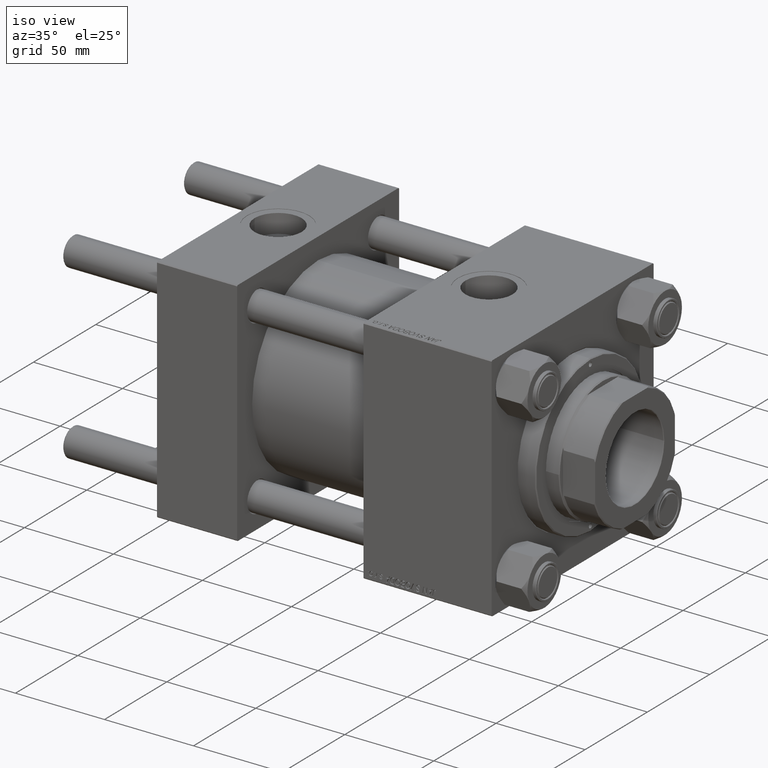
[diagram: clean part render]
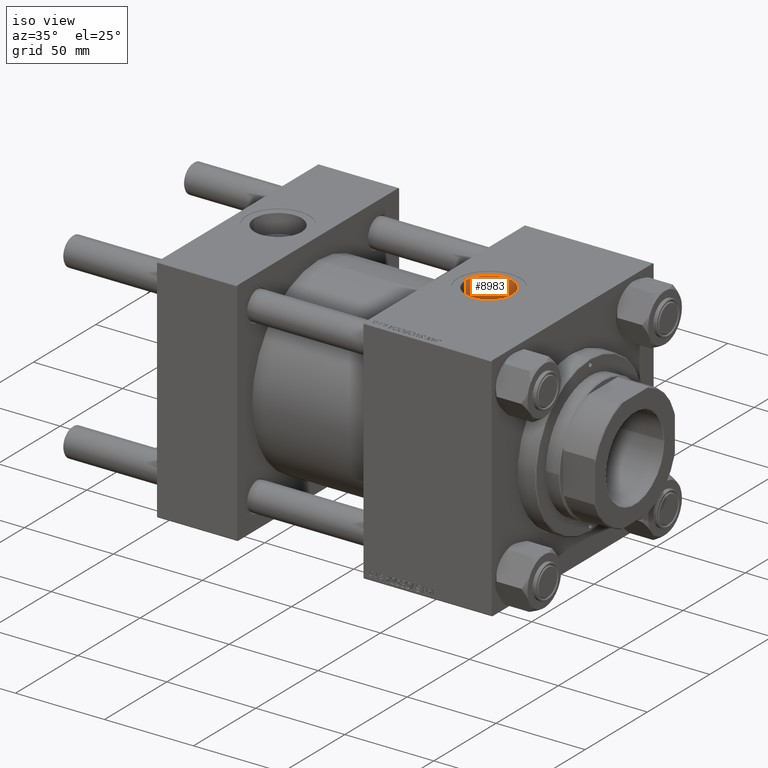
[diagram: same view with one face highlighted and labeled with its STEP entity id]
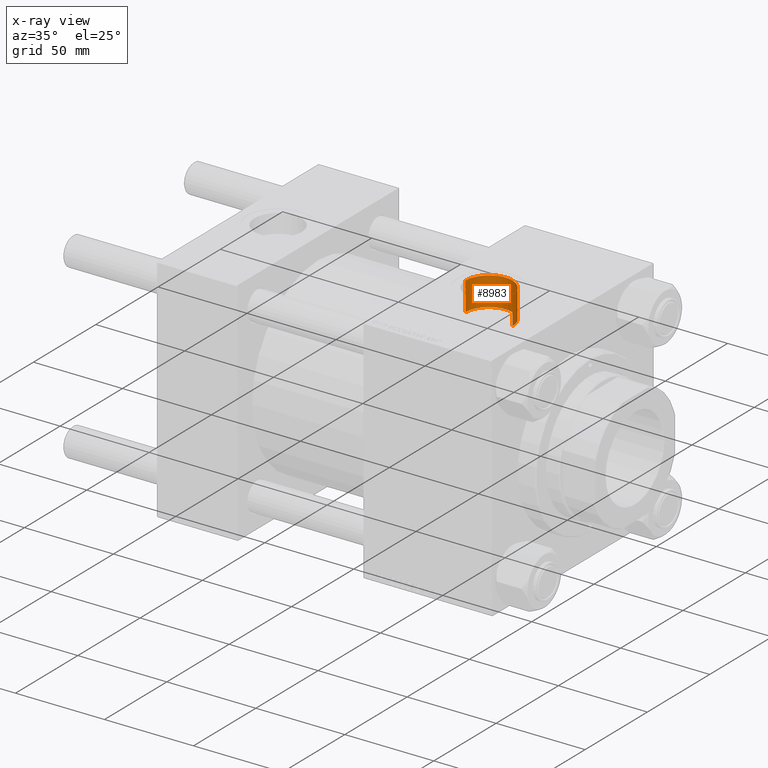
[diagram: x-ray of the same camera — body ghosted, the highlighted face saturated]
A machine part, iso view. The second image highlights one B-rep face of the part: STEP entity #8983.
The next image is the same camera in x-ray: the body ghosted, the highlighted face saturated — about 2% of this face is hidden behind the body in this view.
In plain terms, the highlighted cylindrical surface (edge-blend (fillet) strip) has radius 13.22 mm, axis along (0, 0, -1).
Its self-contained STEP definition (entity closure, byte-faithful):
#1370 = CARTESIAN_POINT ( 'NONE',  ( 140.9999999999999716, -6.938893903907228378E-15, 48.59999999999998721 ) ) ;
#3138 = LINE ( 'NONE', #26336, #14259 ) ;
#3491 = CARTESIAN_POINT ( 'NONE',  ( 154.2199999999999704, -5.319910835434425649E-15, 87.79999999999998295 ) ) ;
#4725 = CYLINDRICAL_SURFACE ( 'NONE', #8488, 13.22000000000000952 ) ;
#5196 = VERTEX_POINT ( 'NONE', #29674 ) ;
#6034 = ORIENTED_EDGE ( 'NONE', *, *, #43263, .F. ) ;
#8298 = CARTESIAN_POINT ( 'NONE',  ( 140.9999999999999716, -6.938893903907228378E-15, 87.79999999999998295 ) ) ;
#8488 = AXIS2_PLACEMENT_3D ( 'NONE', #8298, #47578, #11879 ) ;
#8983 = ADVANCED_FACE ( 'NONE', ( #46816 ), #4725, .F. ) ;
#11879 = DIRECTION ( 'NONE',  ( -1.000000000000000000, 0.000000000000000000, 0.000000000000000000 ) ) ;
#12634 = EDGE_CURVE ( 'NONE', #5196, #22969, #3138, .T. ) ;
#13128 = CARTESIAN_POINT ( 'NONE',  ( 127.7799999999999443, -6.938893903907228378E-15, 48.59999999999998721 ) ) ;
#14065 = ORIENTED_EDGE ( 'NONE', *, *, #20944, .F. ) ;
#14259 = VECTOR ( 'NONE', #18686, 1000.000000000000000 ) ;
#15259 = AXIS2_PLACEMENT_3D ( 'NONE', #1370, #44447, #43708 ) ;
#17436 = ORIENTED_EDGE ( 'NONE', *, *, #49742, .F. ) ;
#18686 = DIRECTION ( 'NONE',  ( 0.000000000000000000, 0.000000000000000000, -1.000000000000000000 ) ) ;
#19546 = LINE ( 'NONE', #3491, #42997 ) ;
#19673 = DIRECTION ( 'NONE',  ( 1.000000000000000000, 0.000000000000000000, 0.000000000000000000 ) ) ;
#20283 = CARTESIAN_POINT ( 'NONE',  ( 154.2199999999999704, -5.319910835434425649E-15, 48.59999999999998721 ) ) ;
#20944 = EDGE_CURVE ( 'NONE', #42695, #40497, #19546, .T. ) ;
#22183 = ORIENTED_EDGE ( 'NONE', *, *, #12634, .T. ) ;
#22969 = VERTEX_POINT ( 'NONE', #13128 ) ;
#26336 = CARTESIAN_POINT ( 'NONE',  ( 127.7799999999999443, -6.938893903907228378E-15, 87.79999999999998295 ) ) ;
#26957 = DIRECTION ( 'NONE',  ( 0.000000000000000000, 0.000000000000000000, -1.000000000000000000 ) ) ;
#29674 = CARTESIAN_POINT ( 'NONE',  ( 127.7799999999999443, -6.938893903907228378E-15, 64.79999999999999716 ) ) ;
#29816 = AXIS2_PLACEMENT_3D ( 'NONE', #50043, #42868, #19673 ) ;
#34164 = EDGE_LOOP ( 'NONE', ( #14065, #6034, #22183, #17436 ) ) ;
#34406 = CARTESIAN_POINT ( 'NONE',  ( 154.2199999999999704, -5.319910835434425649E-15, 64.79999999999999716 ) ) ;
#36425 = CIRCLE ( 'NONE', #15259, 13.22000000000000952 ) ;
#40497 = VERTEX_POINT ( 'NONE', #20283 ) ;
#41199 = CIRCLE ( 'NONE', #29816, 13.22000000000000952 ) ;
#42695 = VERTEX_POINT ( 'NONE', #34406 ) ;
#42868 = DIRECTION ( 'NONE',  ( -0.000000000000000000, -0.000000000000000000, -1.000000000000000000 ) ) ;
#42997 = VECTOR ( 'NONE', #26957, 1000.000000000000000 ) ;
#43263 = EDGE_CURVE ( 'NONE', #5196, #42695, #41199, .T. ) ;
#43708 = DIRECTION ( 'NONE',  ( 1.000000000000000000, 0.000000000000000000, 0.000000000000000000 ) ) ;
#44447 = DIRECTION ( 'NONE',  ( 0.000000000000000000, 0.000000000000000000, 1.000000000000000000 ) ) ;
#46816 = FACE_OUTER_BOUND ( 'NONE', #34164, .T. ) ;
#47578 = DIRECTION ( 'NONE',  ( 0.000000000000000000, 0.000000000000000000, -1.000000000000000000 ) ) ;
#49742 = EDGE_CURVE ( 'NONE', #40497, #22969, #36425, .T. ) ;
#50043 = CARTESIAN_POINT ( 'NONE',  ( 140.9999999999999716, -6.938893903907228378E-15, 64.79999999999999716 ) ) ;